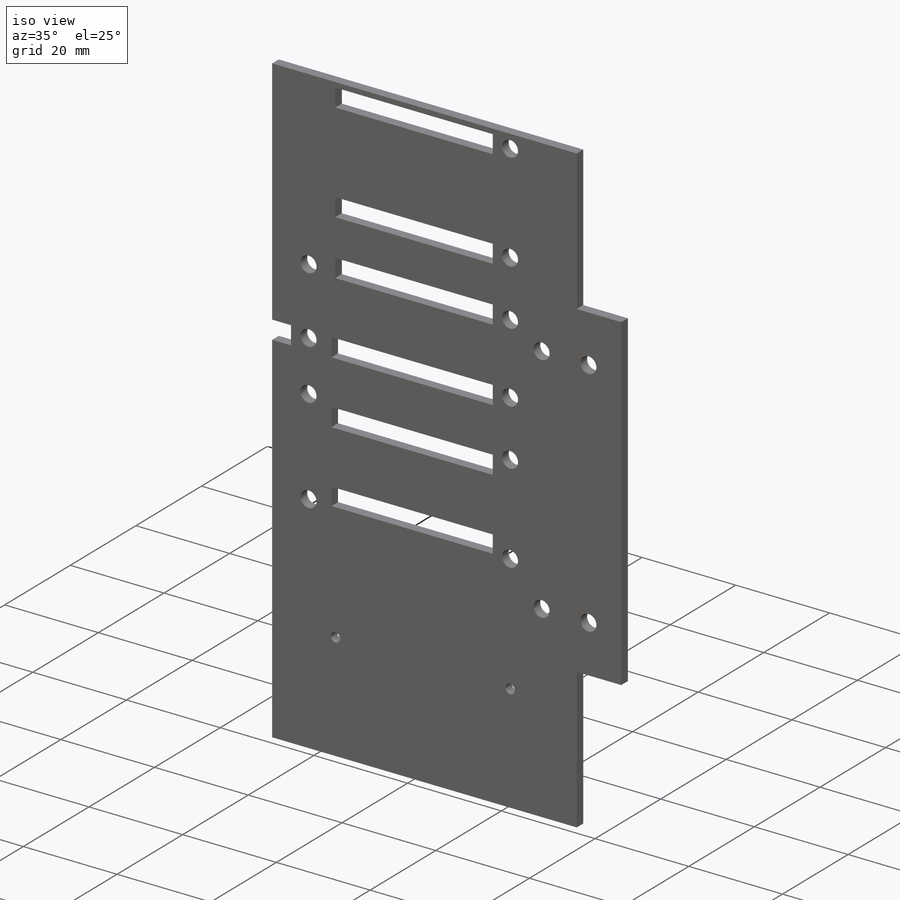
[diagram: iso view]
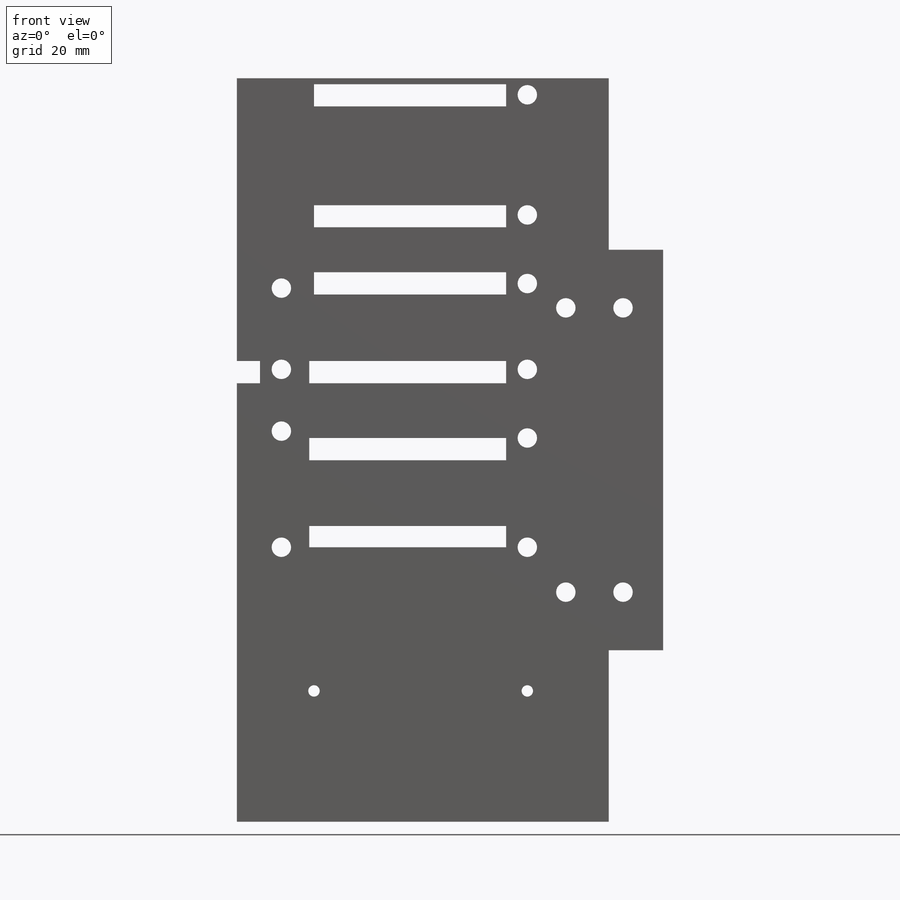
[diagram: front view]
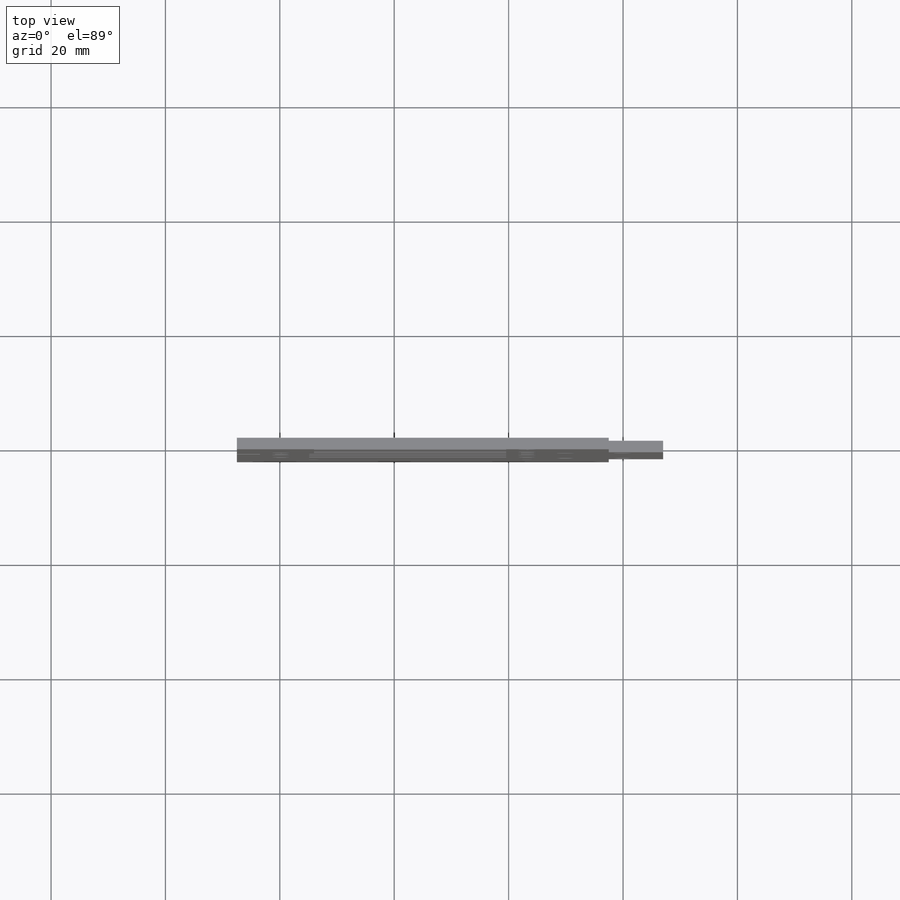
[diagram: top view]
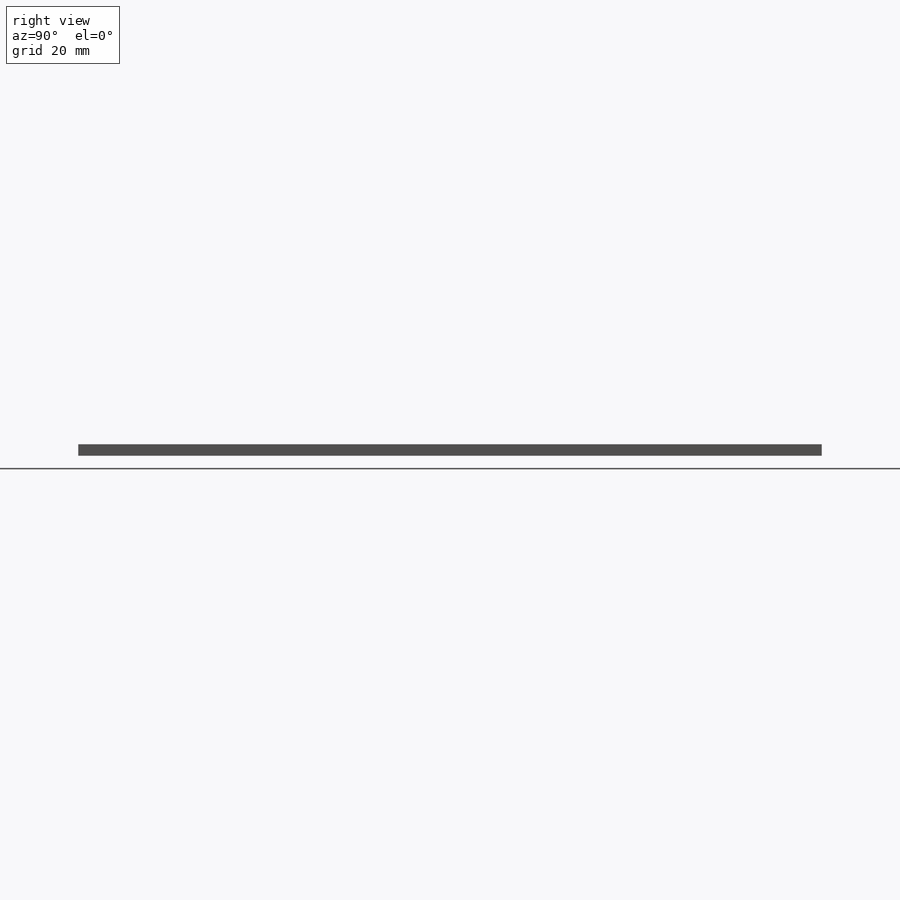
[diagram: right view]
SOLIDWORKS PART (.sldprt)
format: sldprt  version: not decoded by parser v0  size: 297,472 bytes
history: native  units: mm
features: sketch x4, plane x3, extrude x2, cut_extrude x2, material x1 (+10 scaffold rows collapsed)
feature tree (22):
  scaffold x10  (default folders/planes/origin — collapsed)
  material  "Matériau <non spécifié>"
  plane  "Plan de face"
  plane  "Plan de dessus"
  plane  "Plan de droite"
  sketch  "Esquisse1"  dims[c1.D1=~1.743957mm c1.D2=~10.36389mm c2.D1=49.7mm c2.D2=7.0mm c2.D3=70.0mm c2.D4=0.0mm c2.D5=12.0mm]
  extrude  "Boss.-Extru.1"  Depth=2mm
  sketch  "Esquisse2"  dims[D1=65.0mm D2=65.0mm]
  extrude  "Boss.-Extru.2"  Depth=2mm
  sketch  "Esquisse3"  dims[c1.D1=~3.155677mm c1.D4=~1.103609mm c1.D5=~2.345471mm c1.D6=~1.83034mm c1.D7=~2.290396mm c1.D8=~2.337144mm c1.D10=~2.207608mm c1.D11=~1.299402mm c1.D12=~2.38258mm c2.D1=48.0mm c2.D2=35.0mm c2.D3=47.0mm c2.D4=37.3mm c2.D5=19.1mm c2.D6=12.0mm c2.D7=15.0mm c2.D8=12.0mm c2.D9=43.0mm c2.D10=21.0mm c2.D11=20.3mm c2.D12=14.2mm]
  cut_extrude  "Enlèv. mat.-Extru.1"  Depth=2mm
  sketch  "Esquisse4"  dims[D1=10.0mm]
  cut_extrude  "Enlèv. mat.-Extru.2"  Depth=2mm
decode coverage: 8 of 8 modeling features carry decoded parameters
note: ~ marks probable driven/reference dimensions
note: suppression state not decoded; provenance and decode notes live in map.json
